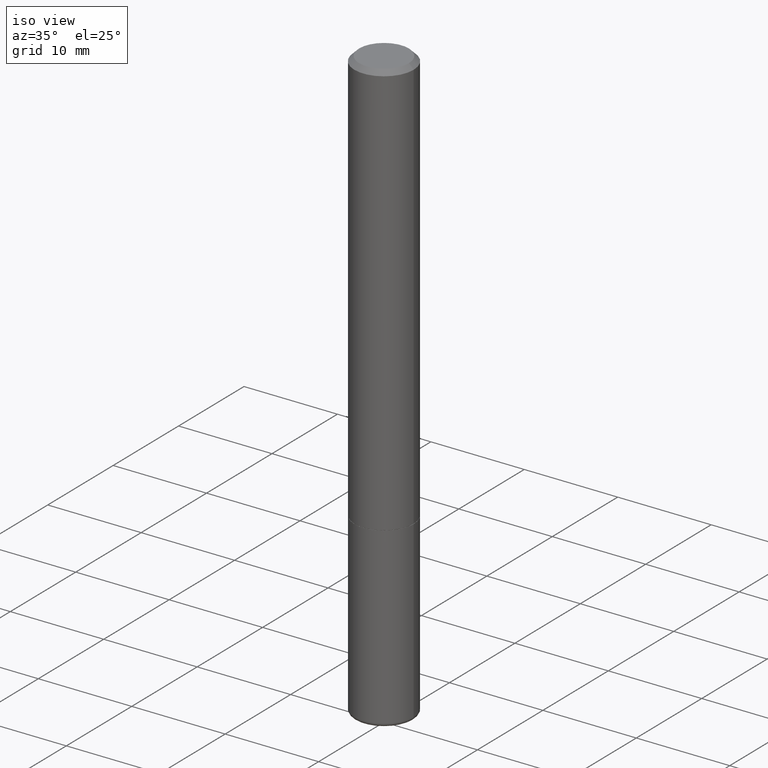
[diagram: clean part render]
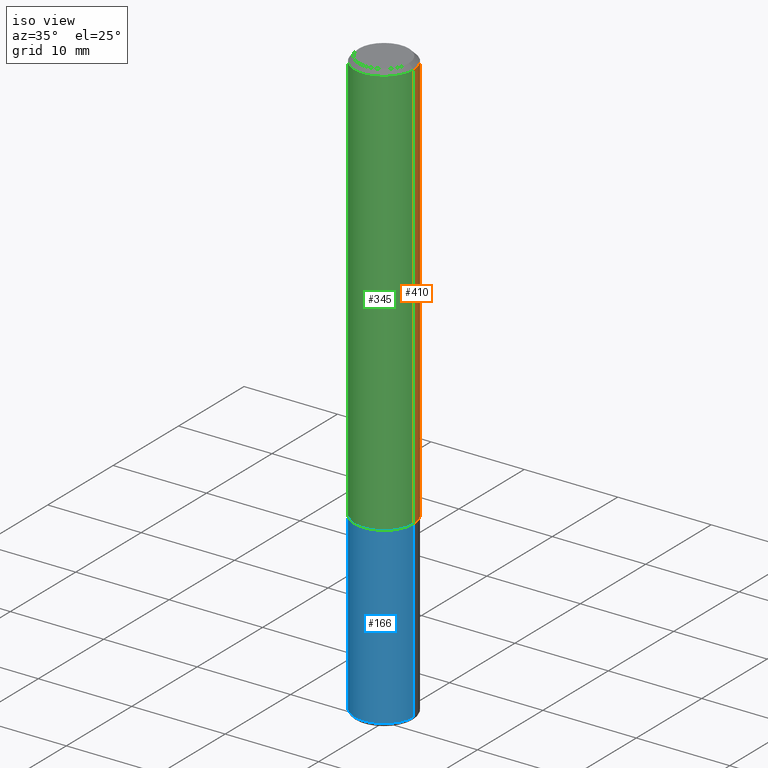
[diagram: same view with three faces highlighted in distinct colors, each labeled with its STEP entity id]
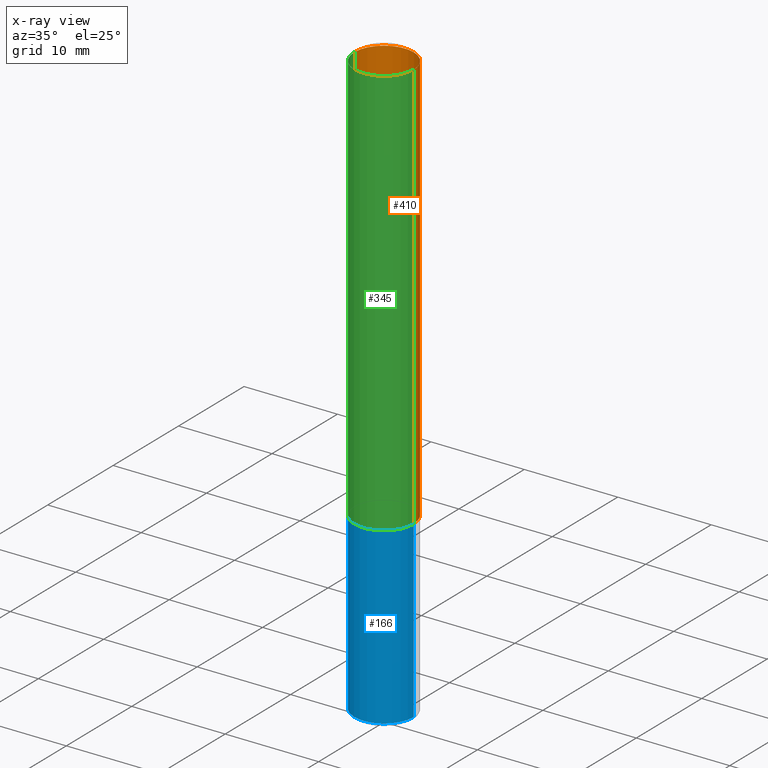
[diagram: x-ray of the same camera — body ghosted, the three highlighted faces saturated]
A machine part, iso view with three faces highlighted in distinct colors.
The next image is the same camera in x-ray (body ghosted, the three faces saturated) — at least one of them is partly hidden behind the body in this view.
Their STEP definitions:

[orange] entity #410 — the highlighted cylindrical surface (edge-blend (fillet) strip) has radius 3.175 mm, axis along (-0, 0, 1).
#47 = CARTESIAN_POINT ( 'NONE',  ( -0.1249999999999999584, 8.030407079339200406E-16, -0.02000000000000006287 ) ) ;
#48 = ORIENTED_EDGE ( 'NONE', *, *, #297, .T. ) ;
#54 = VERTEX_POINT ( 'NONE', #176 ) ;
#63 = AXIS2_PLACEMENT_3D ( 'NONE', #310, #367, #388 ) ;
#72 = VERTEX_POINT ( 'NONE', #416 ) ;
#74 = AXIS2_PLACEMENT_3D ( 'NONE', #80, #361, #95 ) ;
#78 = EDGE_CURVE ( 'NONE', #54, #304, #294, .T. ) ;
#80 = CARTESIAN_POINT ( 'NONE',  ( 0.000000000000000000, 0.000000000000000000, 0.000000000000000000 ) ) ;
#84 = VECTOR ( 'NONE', #153, 39.37007874015748143 ) ;
#94 = EDGE_CURVE ( 'NONE', #72, #109, #412, .T. ) ;
#95 = DIRECTION ( 'NONE',  ( 1.000000000000000000, -6.982962677686267499E-15, 4.876176775795936353E-29 ) ) ;
#109 = VERTEX_POINT ( 'NONE', #47 ) ;
#136 = CARTESIAN_POINT ( 'NONE',  ( -0.1250000000000000555, 8.881784197001256268E-16, -6.148668862818635730E-30 ) ) ;
#153 = DIRECTION ( 'NONE',  ( -2.445468806185136877E-29, 3.491481338843145188E-15, 1.000000000000000000 ) ) ;
#162 = CIRCLE ( 'NONE', #218, 0.1249999999999999584 ) ;
#176 = CARTESIAN_POINT ( 'NONE',  ( 0.1250000000000001943, -6.979471196347446580E-15, -1.749000000000000110 ) ) ;
#182 = CYLINDRICAL_SURFACE ( 'NONE', #74, 0.1250000000000000555 ) ;
#191 = DIRECTION ( 'NONE',  ( -2.445468806185136597E-29, 3.491481338843145583E-15, 1.000000000000000000 ) ) ;
#202 = EDGE_CURVE ( 'NONE', #304, #109, #162, .T. ) ;
#213 = ORIENTED_EDGE ( 'NONE', *, *, #78, .F. ) ;
#218 = AXIS2_PLACEMENT_3D ( 'NONE', #357, #191, #405 ) ;
#264 = CARTESIAN_POINT ( 'NONE',  ( 0.1250000000000000555, -8.728703347107838319E-16, 6.095220969744923244E-30 ) ) ;
#279 = ORIENTED_EDGE ( 'NONE', *, *, #202, .F. ) ;
#294 = LINE ( 'NONE', #264, #379 ) ;
#297 = EDGE_CURVE ( 'NONE', #54, #72, #413, .T. ) ;
#304 = VERTEX_POINT ( 'NONE', #335 ) ;
#310 = CARTESIAN_POINT ( 'NONE',  ( 4.277124942017804562E-29, -6.106600861636661664E-15, -1.749000000000000110 ) ) ;
#327 = ORIENTED_EDGE ( 'NONE', *, *, #94, .T. ) ;
#335 = CARTESIAN_POINT ( 'NONE',  ( 0.1249999999999999584, -9.273918764983043491E-16, -0.02000000000000006287 ) ) ;
#357 = CARTESIAN_POINT ( 'NONE',  ( 4.890937612370288923E-31, -6.982962677686312563E-17, -0.02000000000000006287 ) ) ;
#361 = DIRECTION ( 'NONE',  ( -2.445468806185136597E-29, 3.491481338843145583E-15, 1.000000000000000000 ) ) ;
#365 = EDGE_LOOP ( 'NONE', ( #48, #327, #279, #213 ) ) ;
#367 = DIRECTION ( 'NONE',  ( -2.445468806185136597E-29, 3.491481338843145583E-15, 1.000000000000000000 ) ) ;
#379 = VECTOR ( 'NONE', #382, 39.37007874015748143 ) ;
#382 = DIRECTION ( 'NONE',  ( -2.445468806185136877E-29, 3.491481338843145188E-15, 1.000000000000000000 ) ) ;
#388 = DIRECTION ( 'NONE',  ( 1.000000000000000000, -6.982962677686267499E-15, 0.000000000000000000 ) ) ;
#394 = FACE_OUTER_BOUND ( 'NONE', #365, .T. ) ;
#405 = DIRECTION ( 'NONE',  ( 1.000000000000000000, -6.982962677686267499E-15, 0.000000000000000000 ) ) ;
#410 = ADVANCED_FACE ( 'NONE', ( #394 ), #182, .T. ) ;
#412 = LINE ( 'NONE', #136, #84 ) ;
#413 = CIRCLE ( 'NONE', #63, 0.1250000000000001943 ) ;
#416 = CARTESIAN_POINT ( 'NONE',  ( -0.1250000000000001943, -2.200036824506633304E-15, -1.749000000000000110 ) ) ;

[blue] entity #166 — the highlighted cylindrical surface (edge-blend (fillet) strip) has radius 3.175 mm, axis along (-0, 0, 1).
#13 = AXIS2_PLACEMENT_3D ( 'NONE', #237, #173, #151 ) ;
#31 = DIRECTION ( 'NONE',  ( 1.000000000000000000, -6.982962677686270655E-15, 0.000000000000000000 ) ) ;
#44 = CYLINDRICAL_SURFACE ( 'NONE', #144, 0.1250000000000000000 ) ;
#49 = EDGE_CURVE ( 'NONE', #236, #250, #98, .T. ) ;
#51 = CARTESIAN_POINT ( 'NONE',  ( -0.1250000000000000555, -7.788152707325091448E-15, -2.484999999999999876 ) ) ;
#55 = FACE_OUTER_BOUND ( 'NONE', #333, .T. ) ;
#61 = AXIS2_PLACEMENT_3D ( 'NONE', #360, #205, #31 ) ;
#66 = ORIENTED_EDGE ( 'NONE', *, *, #49, .T. ) ;
#79 = ORIENTED_EDGE ( 'NONE', *, *, #383, .F. ) ;
#91 = EDGE_CURVE ( 'NONE', #311, #236, #288, .T. ) ;
#92 = CARTESIAN_POINT ( 'NONE',  ( 0.1250000000000000000, -6.982962677686288010E-15, -1.750000000000000222 ) ) ;
#93 = VECTOR ( 'NONE', #324, 39.37007874015748143 ) ;
#98 = LINE ( 'NONE', #231, #93 ) ;
#123 = CARTESIAN_POINT ( 'NONE',  ( -0.1250000000000000000, -6.505033315300235838E-15, -1.750000000000000222 ) ) ;
#129 = CARTESIAN_POINT ( 'NONE',  ( 0.1250000000000000555, -9.549201461736000019E-15, -2.484999999999999876 ) ) ;
#144 = AXIS2_PLACEMENT_3D ( 'NONE', #188, #309, #362 ) ;
#151 = DIRECTION ( 'NONE',  ( 1.000000000000000000, -6.982962677686262766E-15, 0.000000000000000000 ) ) ;
#166 = ADVANCED_FACE ( 'NONE', ( #55 ), #44, .T. ) ;
#168 = LINE ( 'NONE', #318, #392 ) ;
#173 = DIRECTION ( 'NONE',  ( -2.445468806185136597E-29, 3.491481338843145583E-15, 1.000000000000000000 ) ) ;
#188 = CARTESIAN_POINT ( 'NONE',  ( 0.000000000000000000, 0.000000000000000000, 0.000000000000000000 ) ) ;
#205 = DIRECTION ( 'NONE',  ( -2.445468806185136597E-29, 3.491481338843145583E-15, 1.000000000000000000 ) ) ;
#231 = CARTESIAN_POINT ( 'NONE',  ( 0.1250000000000000000, -8.728703347107833388E-16, 6.095220969744919741E-30 ) ) ;
#236 = VERTEX_POINT ( 'NONE', #129 ) ;
#237 = CARTESIAN_POINT ( 'NONE',  ( 4.279570410823989044E-29, -6.110092342975505460E-15, -1.750000000000000222 ) ) ;
#250 = VERTEX_POINT ( 'NONE', #92 ) ;
#256 = CIRCLE ( 'NONE', #13, 0.1250000000000000000 ) ;
#285 = DIRECTION ( 'NONE',  ( -2.445468806185136877E-29, 3.491481338843145188E-15, 1.000000000000000000 ) ) ;
#288 = CIRCLE ( 'NONE', #61, 0.1250000000000000000 ) ;
#291 = VERTEX_POINT ( 'NONE', #123 ) ;
#295 = ORIENTED_EDGE ( 'NONE', *, *, #91, .T. ) ;
#309 = DIRECTION ( 'NONE',  ( -2.445468806185136597E-29, 3.491481338843145583E-15, 1.000000000000000000 ) ) ;
#311 = VERTEX_POINT ( 'NONE', #51 ) ;
#318 = CARTESIAN_POINT ( 'NONE',  ( -0.1250000000000000000, 8.881784197001252323E-16, -6.148668862818632227E-30 ) ) ;
#324 = DIRECTION ( 'NONE',  ( -2.445468806185136877E-29, 3.491481338843145188E-15, 1.000000000000000000 ) ) ;
#328 = EDGE_CURVE ( 'NONE', #311, #291, #168, .T. ) ;
#333 = EDGE_LOOP ( 'NONE', ( #368, #295, #66, #79 ) ) ;
#360 = CARTESIAN_POINT ( 'NONE',  ( 6.076989983370064174E-29, -8.676331127025216680E-15, -2.484999999999999876 ) ) ;
#362 = DIRECTION ( 'NONE',  ( 1.000000000000000000, -6.982962677686266711E-15, 4.876176775795935793E-29 ) ) ;
#368 = ORIENTED_EDGE ( 'NONE', *, *, #328, .F. ) ;
#383 = EDGE_CURVE ( 'NONE', #291, #250, #256, .T. ) ;
#392 = VECTOR ( 'NONE', #285, 39.37007874015748143 ) ;

[green] entity #345 — the highlighted cylindrical surface (edge-blend (fillet) strip) has radius 3.175 mm, axis along (-0, 0, 1).
#19 = ORIENTED_EDGE ( 'NONE', *, *, #287, .F. ) ;
#29 = FACE_OUTER_BOUND ( 'NONE', #197, .T. ) ;
#47 = CARTESIAN_POINT ( 'NONE',  ( -0.1249999999999999584, 8.030407079339200406E-16, -0.02000000000000006287 ) ) ;
#54 = VERTEX_POINT ( 'NONE', #176 ) ;
#72 = VERTEX_POINT ( 'NONE', #416 ) ;
#78 = EDGE_CURVE ( 'NONE', #54, #304, #294, .T. ) ;
#84 = VECTOR ( 'NONE', #153, 39.37007874015748143 ) ;
#94 = EDGE_CURVE ( 'NONE', #72, #109, #412, .T. ) ;
#96 = DIRECTION ( 'NONE',  ( -2.445468806185136597E-29, 3.491481338843145583E-15, 1.000000000000000000 ) ) ;
#101 = ORIENTED_EDGE ( 'NONE', *, *, #78, .T. ) ;
#107 = DIRECTION ( 'NONE',  ( -2.445468806185136597E-29, 3.491481338843145583E-15, 1.000000000000000000 ) ) ;
#109 = VERTEX_POINT ( 'NONE', #47 ) ;
#110 = CARTESIAN_POINT ( 'NONE',  ( 0.000000000000000000, 0.000000000000000000, 0.000000000000000000 ) ) ;
#136 = CARTESIAN_POINT ( 'NONE',  ( -0.1250000000000000555, 8.881784197001256268E-16, -6.148668862818635730E-30 ) ) ;
#147 = ORIENTED_EDGE ( 'NONE', *, *, #268, .T. ) ;
#153 = DIRECTION ( 'NONE',  ( -2.445468806185136877E-29, 3.491481338843145188E-15, 1.000000000000000000 ) ) ;
#155 = DIRECTION ( 'NONE',  ( 1.000000000000000000, -6.982962677686267499E-15, 4.876176775795936353E-29 ) ) ;
#171 = CYLINDRICAL_SURFACE ( 'NONE', #312, 0.1250000000000000555 ) ;
#176 = CARTESIAN_POINT ( 'NONE',  ( 0.1250000000000001943, -6.979471196347446580E-15, -1.749000000000000110 ) ) ;
#189 = CARTESIAN_POINT ( 'NONE',  ( 4.890937612370288923E-31, -6.982962677686312563E-17, -0.02000000000000006287 ) ) ;
#197 = EDGE_LOOP ( 'NONE', ( #340, #147, #101, #19 ) ) ;
#229 = AXIS2_PLACEMENT_3D ( 'NONE', #269, #96, #325 ) ;
#264 = CARTESIAN_POINT ( 'NONE',  ( 0.1250000000000000555, -8.728703347107838319E-16, 6.095220969744923244E-30 ) ) ;
#266 = CIRCLE ( 'NONE', #229, 0.1250000000000001943 ) ;
#268 = EDGE_CURVE ( 'NONE', #72, #54, #266, .T. ) ;
#269 = CARTESIAN_POINT ( 'NONE',  ( 4.277124942017804562E-29, -6.106600861636661664E-15, -1.749000000000000110 ) ) ;
#277 = DIRECTION ( 'NONE',  ( 1.000000000000000000, -6.982962677686267499E-15, 0.000000000000000000 ) ) ;
#281 = DIRECTION ( 'NONE',  ( -2.445468806185136597E-29, 3.491481338843145583E-15, 1.000000000000000000 ) ) ;
#287 = EDGE_CURVE ( 'NONE', #109, #304, #298, .T. ) ;
#294 = LINE ( 'NONE', #264, #379 ) ;
#298 = CIRCLE ( 'NONE', #376, 0.1249999999999999584 ) ;
#304 = VERTEX_POINT ( 'NONE', #335 ) ;
#312 = AXIS2_PLACEMENT_3D ( 'NONE', #110, #107, #155 ) ;
#325 = DIRECTION ( 'NONE',  ( 1.000000000000000000, -6.982962677686267499E-15, 0.000000000000000000 ) ) ;
#335 = CARTESIAN_POINT ( 'NONE',  ( 0.1249999999999999584, -9.273918764983043491E-16, -0.02000000000000006287 ) ) ;
#340 = ORIENTED_EDGE ( 'NONE', *, *, #94, .F. ) ;
#345 = ADVANCED_FACE ( 'NONE', ( #29 ), #171, .T. ) ;
#376 = AXIS2_PLACEMENT_3D ( 'NONE', #189, #281, #277 ) ;
#379 = VECTOR ( 'NONE', #382, 39.37007874015748143 ) ;
#382 = DIRECTION ( 'NONE',  ( -2.445468806185136877E-29, 3.491481338843145188E-15, 1.000000000000000000 ) ) ;
#412 = LINE ( 'NONE', #136, #84 ) ;
#416 = CARTESIAN_POINT ( 'NONE',  ( -0.1250000000000001943, -2.200036824506633304E-15, -1.749000000000000110 ) ) ;